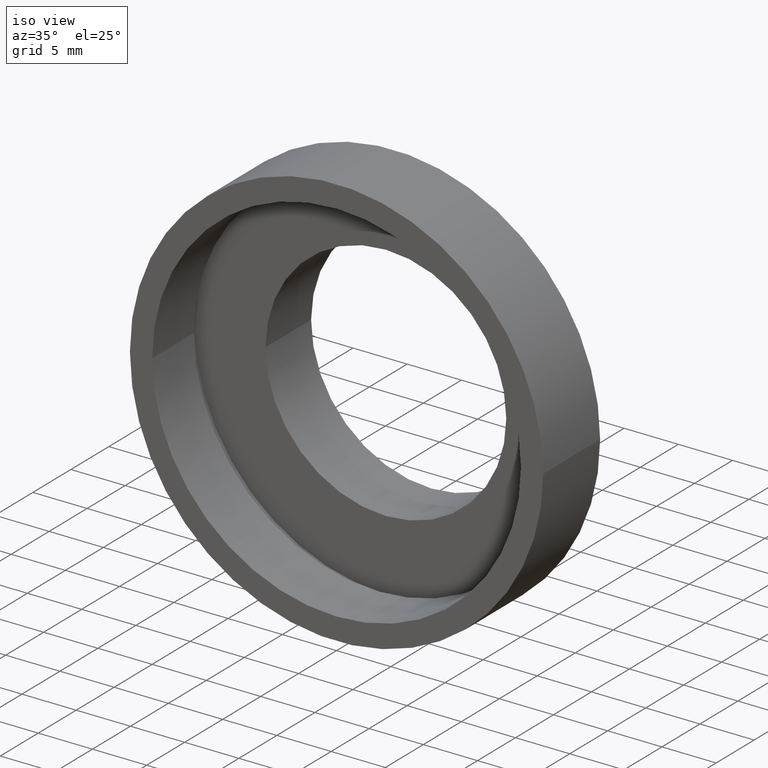
[diagram: clean part render]
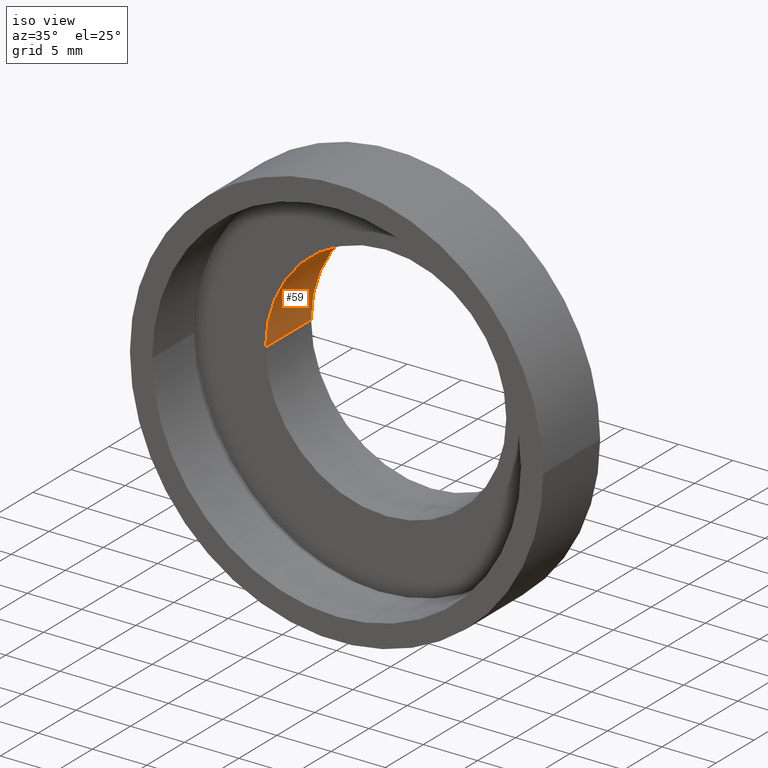
[diagram: same view with one face highlighted and labeled with its STEP entity id]
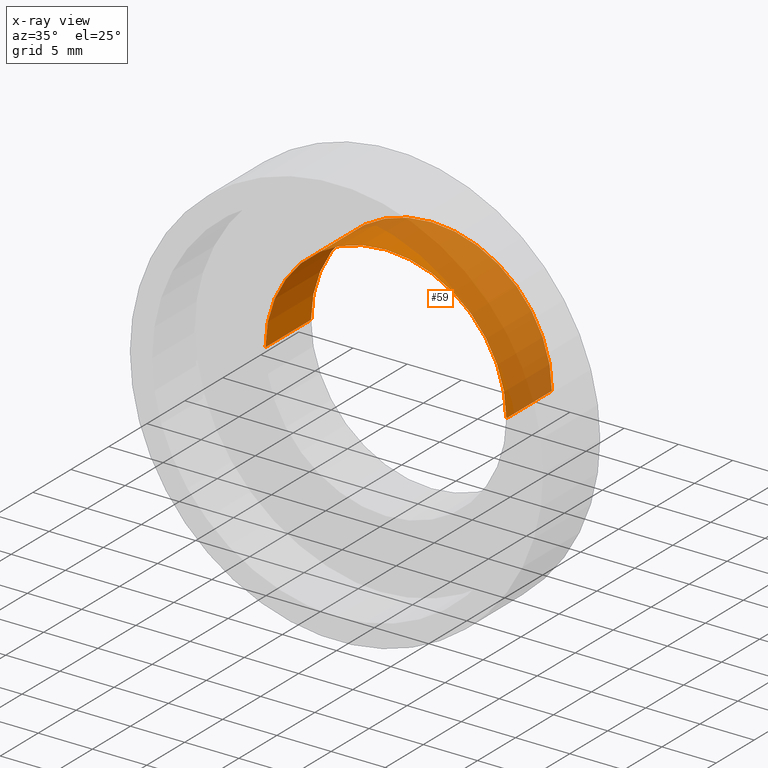
[diagram: x-ray of the same camera — body ghosted, the highlighted face saturated]
A machine part, iso view. The second image highlights one B-rep face of the part: STEP entity #59.
The next image is the same camera in x-ray: the body ghosted, the highlighted face saturated — about 70% of this face is hidden behind the body in this view.
In plain terms, the highlighted cylindrical surface (partial cylindrical patch) has radius 11.1 mm, axis along (-0, 1, -0).
Its self-contained STEP definition (entity closure, byte-faithful):
#41 = DIRECTION ( 'NONE',  ( -1.224646799147351000E-016, 1.000000000000000000, -0.0000000000000000000 ) ) ;
#59 = ADVANCED_FACE ( 'NONE', ( #595 ), #332, .F. ) ;
#74 = ORIENTED_EDGE ( 'NONE', *, *, #436, .T. ) ;
#84 = CIRCLE ( 'NONE', #477, 11.10000000000000100 ) ;
#89 = ORIENTED_EDGE ( 'NONE', *, *, #529, .T. ) ;
#90 = DIRECTION ( 'NONE',  ( -1.224646799147351000E-016, 1.000000000000000000, -0.0000000000000000000 ) ) ;
#116 = VERTEX_POINT ( 'NONE', #510 ) ;
#125 = ORIENTED_EDGE ( 'NONE', *, *, #575, .F. ) ;
#135 = AXIS2_PLACEMENT_3D ( 'NONE', #603, #305, #245 ) ;
#142 = LINE ( 'NONE', #251, #444 ) ;
#146 = DIRECTION ( 'NONE',  ( -1.224646799147351000E-016, 1.000000000000000000, -0.0000000000000000000 ) ) ;
#175 = EDGE_LOOP ( 'NONE', ( #125, #323, #74, #89 ) ) ;
#181 = DIRECTION ( 'NONE',  ( -1.224646799147351000E-016, 1.000000000000000000, -0.0000000000000000000 ) ) ;
#202 = CARTESIAN_POINT ( 'NONE',  ( 11.10000000000000100, 6.499999999999999100, 1.359357947053562400E-015 ) ) ;
#245 = DIRECTION ( 'NONE',  ( -1.000000000000000000, -1.562813942321447800E-016, 0.0000000000000000000 ) ) ;
#251 = CARTESIAN_POINT ( 'NONE',  ( 11.10000000000000100, 16.88601823708207700, 1.359357947053562400E-015 ) ) ;
#288 = LINE ( 'NONE', #558, #557 ) ;
#302 = CARTESIAN_POINT ( 'NONE',  ( 11.10000000000000100, 12.50000000000000000, 1.359357947053562400E-015 ) ) ;
#305 = DIRECTION ( 'NONE',  ( -1.224646799147351000E-016, 1.000000000000000000, -0.0000000000000000000 ) ) ;
#323 = ORIENTED_EDGE ( 'NONE', *, *, #502, .F. ) ;
#331 = VERTEX_POINT ( 'NONE', #536 ) ;
#332 = CYLINDRICAL_SURFACE ( 'NONE', #552, 11.10000000000000100 ) ;
#353 = VERTEX_POINT ( 'NONE', #202 ) ;
#375 = CIRCLE ( 'NONE', #135, 11.10000000000000000 ) ;
#427 = DIRECTION ( 'NONE',  ( -1.000000000000000000, 0.0000000000000000000, 0.0000000000000000000 ) ) ;
#436 = EDGE_CURVE ( 'NONE', #331, #116, #288, .T. ) ;
#438 = CARTESIAN_POINT ( 'NONE',  ( 5.371323195044472300E-016, 12.49999999999999800, 0.0000000000000000000 ) ) ;
#444 = VECTOR ( 'NONE', #181, 1000.000000000000000 ) ;
#477 = AXIS2_PLACEMENT_3D ( 'NONE', #438, #146, #531 ) ;
#478 = CARTESIAN_POINT ( 'NONE',  ( 0.0000000000000000000, 16.88601823708207700, 0.0000000000000000000 ) ) ;
#502 = EDGE_CURVE ( 'NONE', #331, #353, #375, .T. ) ;
#510 = CARTESIAN_POINT ( 'NONE',  ( -11.10000000000000100, 12.49999999999999600, 0.0000000000000000000 ) ) ;
#529 = EDGE_CURVE ( 'NONE', #116, #585, #84, .T. ) ;
#531 = DIRECTION ( 'NONE',  ( -1.000000000000000000, -1.562813942321447500E-016, 0.0000000000000000000 ) ) ;
#536 = CARTESIAN_POINT ( 'NONE',  ( -11.09999999999999800, 6.499999999999995600, 0.0000000000000000000 ) ) ;
#552 = AXIS2_PLACEMENT_3D ( 'NONE', #478, #41, #427 ) ;
#557 = VECTOR ( 'NONE', #90, 1000.000000000000000 ) ;
#558 = CARTESIAN_POINT ( 'NONE',  ( -11.10000000000000100, 16.88601823708207700, 0.0000000000000000000 ) ) ;
#575 = EDGE_CURVE ( 'NONE', #353, #585, #142, .T. ) ;
#585 = VERTEX_POINT ( 'NONE', #302 ) ;
#595 = FACE_OUTER_BOUND ( 'NONE', #175, .T. ) ;
#603 = CARTESIAN_POINT ( 'NONE',  ( 1.271920398992858000E-015, 6.499999999999997300, 0.0000000000000000000 ) ) ;